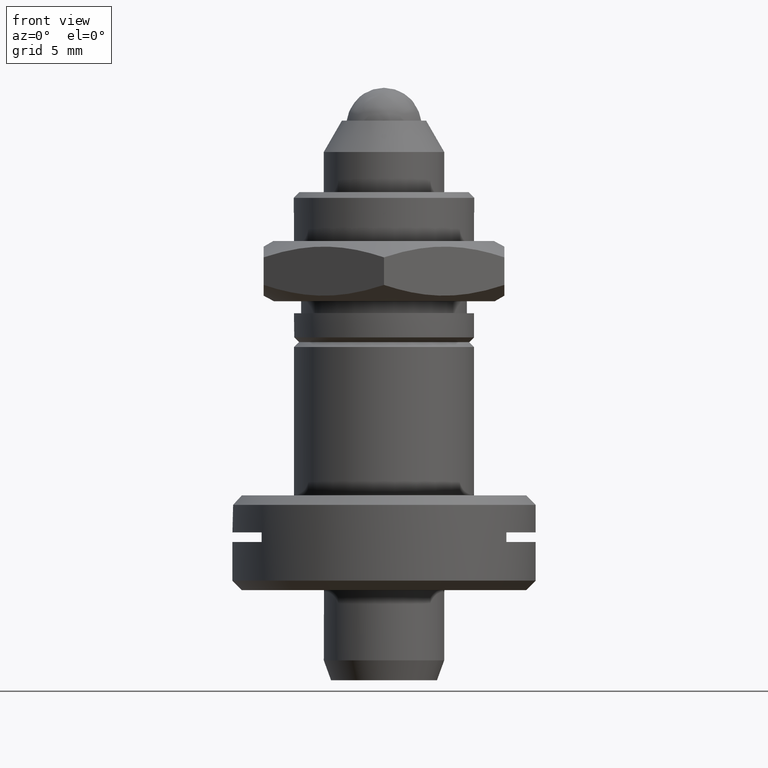
[diagram: clean part render]
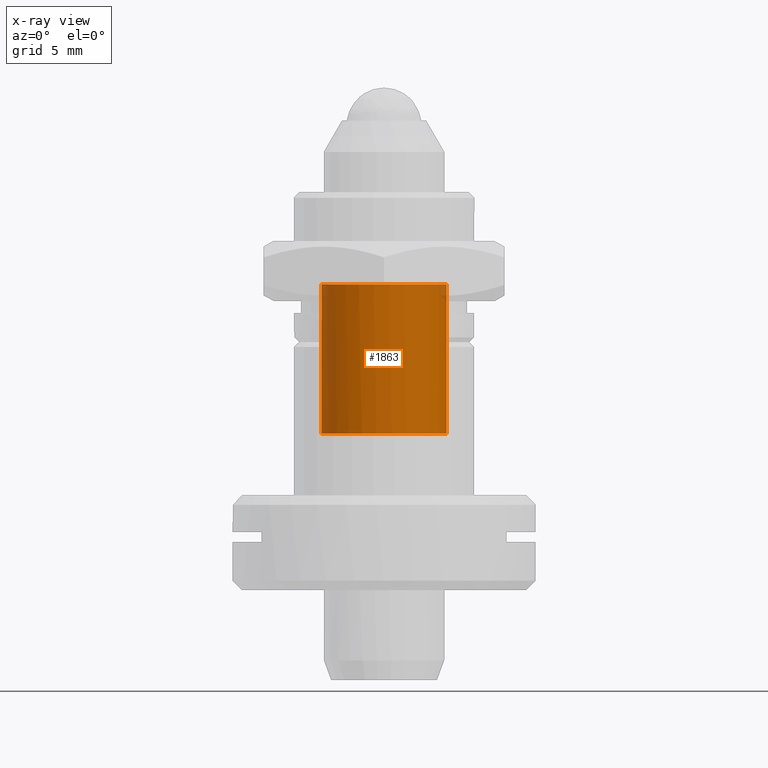
[diagram: x-ray — body ghosted, one internal face saturated and labeled with its STEP entity id]
A machine part, front view, then the same camera in x-ray: the body is ghosted and one INTERNAL B-rep face — a face not visible from any outside direction — is saturated and labeled: STEP entity #1863.
In plain terms, the highlighted cylindrical surface (bore or boss wall) has radius 3.302 mm, axis along (0, 0, 1).
Its self-contained STEP definition (entity closure, byte-faithful):
#49 = CARTESIAN_POINT ( 'NONE',  ( 0.000000000000000000, 0.000000000000000000, -18.23719999999999786 ) ) ;
#64 = DIRECTION ( 'NONE',  ( 1.000000000000000000, 0.000000000000000000, 0.000000000000000000 ) ) ;
#171 = DIRECTION ( 'NONE',  ( 1.000000000000000000, 0.000000000000000000, 0.000000000000000000 ) ) ;
#249 = CARTESIAN_POINT ( 'NONE',  ( 3.301999999999999602, 0.000000000000000000, -10.36319999999999908 ) ) ;
#326 = CARTESIAN_POINT ( 'NONE',  ( 0.000000000000000000, 0.000000000000000000, -10.36319999999999908 ) ) ;
#328 = AXIS2_PLACEMENT_3D ( 'NONE', #326, #2343, #1522 ) ;
#342 = CYLINDRICAL_SURFACE ( 'NONE', #2373, 3.301999999999999602 ) ;
#413 = CIRCLE ( 'NONE', #871, 3.301999999999999602 ) ;
#588 = CARTESIAN_POINT ( 'NONE',  ( 3.301999999999999602, 0.000000000000000000, -18.23719999999999786 ) ) ;
#716 = EDGE_CURVE ( 'NONE', #1014, #1014, #413, .T. ) ;
#871 = AXIS2_PLACEMENT_3D ( 'NONE', #49, #1029, #64 ) ;
#943 = FACE_OUTER_BOUND ( 'NONE', #1633, .T. ) ;
#1014 = VERTEX_POINT ( 'NONE', #588 ) ;
#1029 = DIRECTION ( 'NONE',  ( 0.000000000000000000, 0.000000000000000000, 1.000000000000000000 ) ) ;
#1037 = ORIENTED_EDGE ( 'NONE', *, *, #1371, .F. ) ;
#1038 = ORIENTED_EDGE ( 'NONE', *, *, #716, .F. ) ;
#1110 = CIRCLE ( 'NONE', #328, 3.301999999999999602 ) ;
#1359 = EDGE_LOOP ( 'NONE', ( #1038 ) ) ;
#1371 = EDGE_CURVE ( 'NONE', #1977, #1977, #1110, .T. ) ;
#1522 = DIRECTION ( 'NONE',  ( 1.000000000000000000, 0.000000000000000000, 0.000000000000000000 ) ) ;
#1633 = EDGE_LOOP ( 'NONE', ( #1037 ) ) ;
#1727 = CARTESIAN_POINT ( 'NONE',  ( 0.000000000000000000, 0.000000000000000000, 1.337328265961435836 ) ) ;
#1863 = ADVANCED_FACE ( 'NONE', ( #1907, #943 ), #342, .F. ) ;
#1907 = FACE_OUTER_BOUND ( 'NONE', #1359, .T. ) ;
#1977 = VERTEX_POINT ( 'NONE', #249 ) ;
#2343 = DIRECTION ( 'NONE',  ( -0.000000000000000000, -0.000000000000000000, -1.000000000000000000 ) ) ;
#2373 = AXIS2_PLACEMENT_3D ( 'NONE', #1727, #2539, #171 ) ;
#2539 = DIRECTION ( 'NONE',  ( 0.000000000000000000, 0.000000000000000000, 1.000000000000000000 ) ) ;